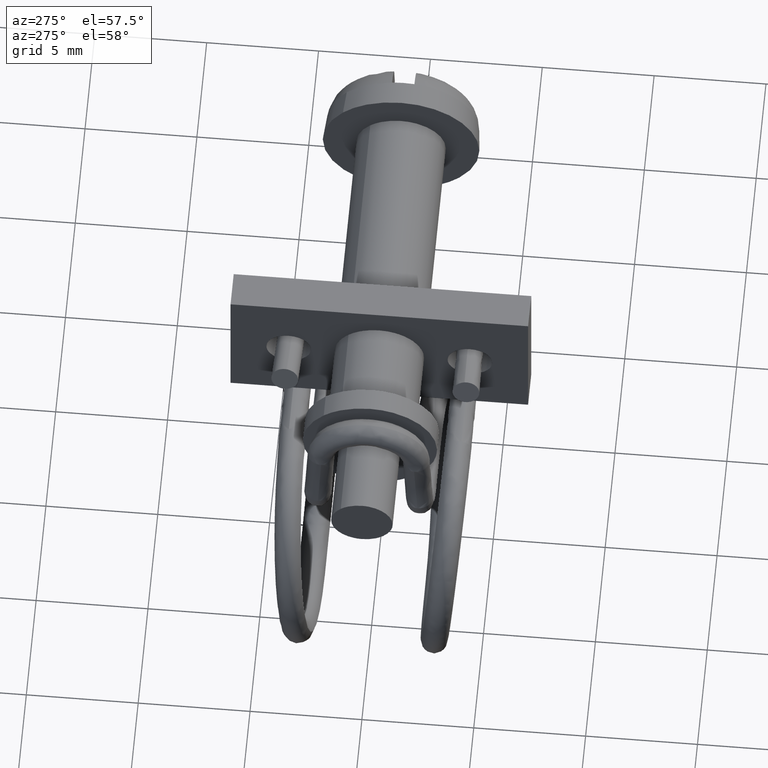
[diagram: clean part render]
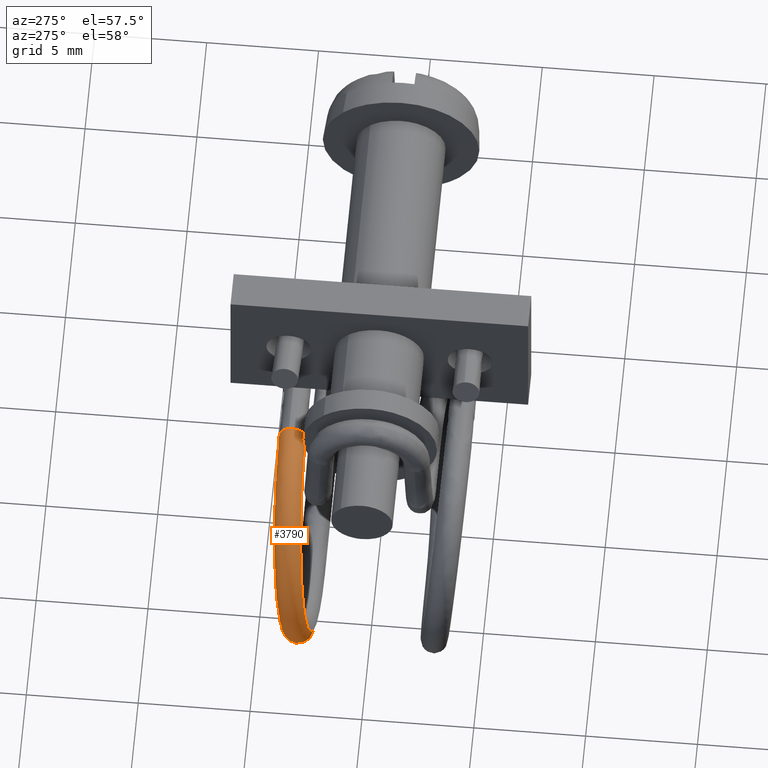
[diagram: same view with one face highlighted and labeled with its STEP entity id]
A machine part, auxiliary view. The second image highlights one B-rep face of the part: STEP entity #3790.
In plain terms, the highlighted face is a freeform B-spline surface patch.
Its self-contained STEP definition (entity closure, byte-faithful):
#3320=CARTESIAN_POINT('',(-13.150000000000000,2.250682573331275,-15.278611572537450));
#3321=VERTEX_POINT('',#3320);
#3337=CARTESIAN_POINT('',(-13.150000000000000,3.449317426677660,-15.221388427477610));
#3338=VERTEX_POINT('',#3337);
#3450=CARTESIAN_POINT('',(-13.150000000000000,3.449317426677660,-15.221388427477610));
#3451=CARTESIAN_POINT('',(-13.150000000000000,3.464298411022270,-15.535190298279799));
#3452=CARTESIAN_POINT('',(-13.150000000000000,3.192413443335191,-15.834336442338801));
#3453=CARTESIAN_POINT('',(-13.150000000000000,2.564809701733581,-15.864298411028001));
#3454=CARTESIAN_POINT('',(-13.150000000000000,2.265663557675883,-15.592413443339650));
#3455=CARTESIAN_POINT('',(-13.150000000000000,2.250682573331275,-15.278611572537450));
#3456=B_SPLINE_CURVE_WITH_KNOTS('',3,(#3450,#3451,#3452,#3453,#3454,#3455),.UNSPECIFIED.,.F.,.U.,(4,2,4),(0.0,0.250000000000000,0.500000000000000),.UNSPECIFIED.);
#3457=EDGE_CURVE('',#3338,#3321,#3456,.T.);
#3586=CARTESIAN_POINT('',(-13.150000000000000,3.108097682923939,-3.931654554348345));
#3587=VERTEX_POINT('',#3586);
#3588=CARTESIAN_POINT('',(-13.150000000000000,3.108097682923939,-3.931654554348345));
#3589=CARTESIAN_POINT('',(-14.640227213124470,3.108097682923939,-3.931654554348345));
#3590=CARTESIAN_POINT('',(-16.112908063799701,3.061836032400463,-4.543877215618263));
#3591=CARTESIAN_POINT('',(-18.212977931657480,2.903071108961404,-6.644958409650029));
#3592=CARTESIAN_POINT('',(-18.823839354673549,2.791546208937348,-8.120869240774837));
#3593=CARTESIAN_POINT('',(-18.823536557400981,2.567146626129018,-11.090553810745970));
#3594=CARTESIAN_POINT('',(-18.212388786537620,2.455640336114955,-12.566218358617540));
#3595=CARTESIAN_POINT('',(-16.112270238921450,2.296920290530629,-14.666705643019281));
#3596=CARTESIAN_POINT('',(-14.639837804677249,2.250682573315323,-15.278611572537450));
#3597=CARTESIAN_POINT('',(-13.150000000000000,2.250682573315323,-15.278611572537450));
#3598=B_SPLINE_CURVE_WITH_KNOTS('',3,(#3588,#3589,#3590,#3591,#3592,#3593,#3594,#3595,#3596,#3597),.UNSPECIFIED.,.F.,.U.,(4,2,2,2,4),(0.106285421806451,0.144494037259015,0.182702652711579,0.220911268164144,0.259119883616708),.UNSPECIFIED.);
#3599=EDGE_CURVE('',#3587,#3321,#3598,.T.);
#3602=CARTESIAN_POINT('',(-13.150000000000000,4.284523380528468,-4.168345445636729));
#3603=VERTEX_POINT('',#3602);
#3604=CARTESIAN_POINT('',(-13.150000000000000,4.284523380528468,-4.168345445636729));
#3605=CARTESIAN_POINT('',(-14.601395473290831,4.284523380528468,-4.168345445636729));
#3606=CARTESIAN_POINT('',(-16.035760743332720,4.239468188362447,-4.764601941892142));
#3607=CARTESIAN_POINT('',(-18.081357605838750,4.084821414825846,-6.811183898133701));
#3608=CARTESIAN_POINT('',(-18.676459473801849,3.976179518512834,-8.248941308793379));
#3609=CARTESIAN_POINT('',(-18.676164497714179,3.757576125579505,-11.141919605857391));
#3610=CARTESIAN_POINT('',(-18.080783707251001,3.648952363423784,-12.579437030654930));
#3611=CARTESIAN_POINT('',(-16.035139497904680,3.494349308978703,-14.625440412242391));
#3612=CARTESIAN_POINT('',(-14.601016221487679,3.449317426667025,-15.221388427477610));
#3613=CARTESIAN_POINT('',(-13.150000000000000,3.449317426667025,-15.221388427477610));
#3614=B_SPLINE_CURVE_WITH_KNOTS('',3,(#3604,#3605,#3606,#3607,#3608,#3609,#3610,#3611,#3612,#3613),.UNSPECIFIED.,.F.,.U.,(4,2,2,2,4),(0.106285421806451,0.144494037259015,0.182702652711579,0.220911268164144,0.259119883616708),.UNSPECIFIED.);
#3615=EDGE_CURVE('',#3603,#3338,#3614,.T.);
#3642=CARTESIAN_POINT('',(-12.976422789133490,4.279799591012056,-4.187076102854281));
#3643=CARTESIAN_POINT('',(-12.971401568699070,4.319053650277308,-4.030454799364049));
#3644=CARTESIAN_POINT('',(-12.961149686177221,4.252428518973728,-3.693523444431918));
#3645=CARTESIAN_POINT('',(-12.955297098569240,3.973753837361508,-3.490308991538161));
#3646=CARTESIAN_POINT('',(-12.954053218022381,3.656923439314455,-3.426419498743458));
#3647=CARTESIAN_POINT('',(-12.957532477170581,3.321219677848547,-3.505843785658303));
#3648=CARTESIAN_POINT('',(-12.966699604155730,3.129466360220135,-3.791448958468699));
#3649=CARTESIAN_POINT('',(-12.971765545139990,3.105124599765797,-3.950626780778587));
#3650=CARTESIAN_POINT('',(-13.034281855314280,4.280107212601552,-4.186797024039488));
#3651=CARTESIAN_POINT('',(-13.030934375777370,4.318795999395942,-4.030718642233656));
#3652=CARTESIAN_POINT('',(-13.024099789459621,4.253214701552293,-3.693402501548455));
#3653=CARTESIAN_POINT('',(-13.020198065393821,3.973619011183765,-3.490743903169666));
#3654=CARTESIAN_POINT('',(-13.019368812275211,3.656935965478898,-3.426829803503119));
#3655=CARTESIAN_POINT('',(-13.021688319267909,3.320357264655494,-3.505036924410335));
#3656=CARTESIAN_POINT('',(-13.027799739476910,3.129622118365851,-3.791958913308476));
#3657=CARTESIAN_POINT('',(-13.031177034245260,3.105066243423519,-3.950382517053189));
#3658=CARTESIAN_POINT('',(-13.092140918900469,4.280256741450317,-4.186729097015593));
#3659=CARTESIAN_POINT('',(-13.090467176885801,4.317101664582097,-4.032414987678601));
#3660=CARTESIAN_POINT('',(-13.087049881613201,4.257898415846957,-3.689787464870360));
#3661=CARTESIAN_POINT('',(-13.085099027863169,3.970665773685925,-3.492216453925907));
#3662=CARTESIAN_POINT('',(-13.084684410892351,3.658937053509455,-3.429057979222512));
#3663=CARTESIAN_POINT('',(-13.085844172945450,3.317941250157805,-3.501315573335996));
#3664=CARTESIAN_POINT('',(-13.088899880552381,3.129973509817724,-3.793365028654704));
#3665=CARTESIAN_POINT('',(-13.090588525853329,3.105001152655373,-3.950345641056582));
#3666=CARTESIAN_POINT('',(-13.873238599302960,4.280047206393133,-4.187043902651647));
#3667=CARTESIAN_POINT('',(-13.894160407718630,4.322701708721959,-4.027067491510815));
#3668=CARTESIAN_POINT('',(-13.936876631870041,4.242374004307527,-3.699921855525006));
#3669=CARTESIAN_POINT('',(-13.961262207684049,3.974145557072819,-3.493671534735501));
#3670=CARTESIAN_POINT('',(-13.966444808349239,3.655921940720155,-3.429967037147822));
#3671=CARTESIAN_POINT('',(-13.951947682436881,3.329068842349581,-3.516324175522310));
#3672=CARTESIAN_POINT('',(-13.913751374572319,3.128220187237320,-3.787007189743088));
#3673=CARTESIAN_POINT('',(-13.892643343950690,3.104907235717862,-3.950551943221938));
#3674=CARTESIAN_POINT('',(-15.311232780070460,4.258073361420668,-4.483923023922867));
#3675=CARTESIAN_POINT('',(-15.373719683528311,4.293569707552706,-4.336300409163881));
#3676=CARTESIAN_POINT('',(-15.501299996631870,4.220165125582954,-4.018394261916545));
#3677=CARTESIAN_POINT('',(-15.574133646918879,3.946839178966337,-3.821425551102299));
#3678=CARTESIAN_POINT('',(-15.589613760472620,3.633557338090341,-3.760390491808018));
#3679=CARTESIAN_POINT('',(-15.546316136930020,3.302502793915599,-3.839992550608890));
#3680=CARTESIAN_POINT('',(-15.432234285236810,3.107660910006206,-4.105751290413507));
#3681=CARTESIAN_POINT('',(-15.369190295903129,3.081637252013573,-4.255360370775136));
#3682=CARTESIAN_POINT('',(-16.535662687524560,4.196964394909289,-5.291079385719208));
#3683=CARTESIAN_POINT('',(-16.633468611633479,4.232757496406761,-5.165018930655346));
#3684=CARTESIAN_POINT('',(-16.833159357253638,4.152031852704479,-4.897668252619329));
#3685=CARTESIAN_POINT('',(-16.947157830785059,3.879057285378661,-4.728084121135779));
#3686=CARTESIAN_POINT('',(-16.971385973455352,3.563866767494184,-4.672716439956420));
#3687=CARTESIAN_POINT('',(-16.903615051057152,3.236485652979881,-4.736799567132568));
#3688=CARTESIAN_POINT('',(-16.725054634808870,3.042476196325794,-4.955876070775583));
#3689=CARTESIAN_POINT('',(-16.626378784835929,3.019047606417061,-5.084107870490615));
#3690=CARTESIAN_POINT('',(-18.064685901678981,4.081427961467000,-6.820823501114010));
#3691=CARTESIAN_POINT('',(-18.206514513768099,4.113201609861385,-6.739072848729415));
#3692=CARTESIAN_POINT('',(-18.496087239885629,4.026147763904602,-6.560991241611336));
#3693=CARTESIAN_POINT('',(-18.661399131594440,3.749163628831763,-6.442739283382180));
#3694=CARTESIAN_POINT('',(-18.696534142857740,3.433785535589452,-6.398372063604886));
#3695=CARTESIAN_POINT('',(-18.598259797138901,3.108562627765342,-6.431905640555713));
#3696=CARTESIAN_POINT('',(-18.339325438315690,2.920841126162793,-6.571351204653895));
#3697=CARTESIAN_POINT('',(-18.196233187966332,2.900330449114907,-6.654690909248972));
#3698=CARTESIAN_POINT('',(-18.657790903397000,3.973127157972812,-8.253767006680873));
#3699=CARTESIAN_POINT('',(-18.816604089523139,4.002078135167148,-8.212907404511846));
#3700=CARTESIAN_POINT('',(-19.140851420639532,3.908593564339998,-8.118832571806877));
#3701=CARTESIAN_POINT('',(-19.325954078166180,3.628024216206540,-8.048419427653030));
#3702=CARTESIAN_POINT('',(-19.365292799421091,3.311574593819643,-8.014188962449502));
#3703=CARTESIAN_POINT('',(-19.255248718166030,2.988519386103347,-8.019313991002530));
#3704=CARTESIAN_POINT('',(-18.965313234596799,2.806412027466531,-8.083614583997035));
#3705=CARTESIAN_POINT('',(-18.805090339412089,2.789183821361665,-8.125773564300525));
#3706=CARTESIAN_POINT('',(-18.657496674739932,3.755309399342656,-11.136903045207930));
#3707=CARTESIAN_POINT('',(-18.816303514026689,3.777544164499910,-11.179805014631629));
#3708=CARTESIAN_POINT('',(-19.140535830118349,3.670869582511130,-11.256103726028320));
#3709=CARTESIAN_POINT('',(-19.325626201344491,3.383122020094209,-11.282674589106909));
#3710=CARTESIAN_POINT('',(-19.364959966754451,3.065456764969278,-11.268985415087110));
#3711=CARTESIAN_POINT('',(-19.254919125744991,2.747042086829293,-11.216287165651361));
#3712=CARTESIAN_POINT('',(-18.965001088518068,2.576487217943253,-11.128004225447460));
#3713=CARTESIAN_POINT('',(-18.804788780308971,2.565519112699877,-11.085560981200450));
#3714=CARTESIAN_POINT('',(-18.064114052926030,3.647047766196208,-12.569540902172941));
#3715=CARTESIAN_POINT('',(-18.205925319579119,3.666210478386987,-12.653949261255150));
#3716=CARTESIAN_POINT('',(-18.495463253414350,3.553163668246161,-12.814778831605450));
#3717=CARTESIAN_POINT('',(-18.660757060635000,3.261673318722235,-12.889431290177670));
#3718=CARTESIAN_POINT('',(-18.695889354894589,2.943101068161405,-12.885897712819050));
#3719=CARTESIAN_POINT('',(-18.597627600832539,2.626781935725921,-12.804505994771510));
#3720=CARTESIAN_POINT('',(-18.338722298631350,2.462073919276055,-12.640606208480779));
#3721=CARTESIAN_POINT('',(-18.195645884744948,2.454397170515085,-12.556331045294071));
#3722=CARTESIAN_POINT('',(-16.025369064457269,3.492965600450101,-14.608650022562591));
#3723=CARTESIAN_POINT('',(-16.108483241170578,3.507695330319068,-14.751704266790879));
#3724=CARTESIAN_POINT('',(-16.278177140410001,3.385600114262848,-15.032345302600691));
#3725=CARTESIAN_POINT('',(-16.375049921735339,3.088938083598545,-15.175399657226601));
#3726=CARTESIAN_POINT('',(-16.395637595952600,2.769291830546136,-15.186418214177600));
#3727=CARTESIAN_POINT('',(-16.338046458971160,2.456034112253719,-15.064387834055610));
#3728=CARTESIAN_POINT('',(-16.186310306877949,2.299404271368821,-14.793347936274730));
#3729=CARTESIAN_POINT('',(-16.102458347778452,2.296200647671116,-14.649891330565270));
#3730=CARTESIAN_POINT('',(-14.596099286699991,3.448091555270395,-15.202567465309940));
#3731=CARTESIAN_POINT('',(-14.637931274010230,3.461477941861750,-15.362925267204661));
#3732=CARTESIAN_POINT('',(-14.723340463830530,3.336698199929059,-15.678613858415391));
#3733=CARTESIAN_POINT('',(-14.772099831568120,3.038590332205741,-15.841723553671560));
#3734=CARTESIAN_POINT('',(-14.782463468988849,2.718629036544810,-15.856997696730581));
#3735=CARTESIAN_POINT('',(-14.753477786813789,2.406340600604034,-15.723027315699600));
#3736=CARTESIAN_POINT('',(-14.677104229168190,2.252058732757817,-15.420662646830280));
#3737=CARTESIAN_POINT('',(-14.634898518063940,2.250110044695493,-15.259759921060731));
#3738=CARTESIAN_POINT('',(-13.092156050437721,3.448073571031026,-15.202583153581619));
#3739=CARTESIAN_POINT('',(-13.090482757389021,3.461618047432105,-15.362748975788310));
#3740=CARTESIAN_POINT('',(-13.087066369736920,3.336958516225999,-15.678570803379770));
#3741=CARTESIAN_POINT('',(-13.085116002002680,3.038645186331215,-15.841675172386051));
#3742=CARTESIAN_POINT('',(-13.084701465878760,2.718578128481602,-15.856955269758661));
#3743=CARTESIAN_POINT('',(-13.085860900219091,2.406083623750666,-15.723011061390871));
#3744=CARTESIAN_POINT('',(-13.088915822521820,2.251904682192757,-15.420501110203629));
#3745=CARTESIAN_POINT('',(-13.090604037386870,2.250129514589454,-15.259773432884570));
#3746=CARTESIAN_POINT('',(-13.034312150623251,3.448070609624439,-15.202583790526930));
#3747=CARTESIAN_POINT('',(-13.030965536777559,3.461604608122572,-15.362766577961519));
#3748=CARTESIAN_POINT('',(-13.024132720958839,3.336938670869141,-15.678562746518530));
#3749=CARTESIAN_POINT('',(-13.020231996244069,3.038643009901049,-15.841671990440901));
#3750=CARTESIAN_POINT('',(-13.019402939368330,2.718580499217694,-15.856951817639290));
#3751=CARTESIAN_POINT('',(-13.021721818954530,2.406103157491111,-15.723000968164000));
#3752=CARTESIAN_POINT('',(-13.027831623152350,2.251920357790219,-15.420517198283751));
#3753=CARTESIAN_POINT('',(-13.031208025093330,2.250133169866732,-15.259773622070879));
#3754=CARTESIAN_POINT('',(-12.976468226309059,3.448072995109651,-15.202578544603970));
#3755=CARTESIAN_POINT('',(-12.971448312023091,3.461596879819912,-15.362777108048020));
#3756=CARTESIAN_POINT('',(-12.961199093773700,3.336932284093841,-15.678555576603820));
#3757=CARTESIAN_POINT('',(-12.955347998983511,3.038642795261361,-15.841669579877159));
#3758=CARTESIAN_POINT('',(-12.954104404537530,2.718580998587899,-15.856949365269360));
#3759=CARTESIAN_POINT('',(-12.957582716159930,2.406109333143687,-15.722993180704750));
#3760=CARTESIAN_POINT('',(-12.966747427911169,2.251929501867843,-15.420526874708340));
#3761=CARTESIAN_POINT('',(-12.971812037310610,2.250130728836464,-15.259768544938360));
#3762=B_SPLINE_SURFACE_WITH_KNOTS('',3,3,((#3642,#3650,#3658,#3666,#3674,#3682,#3690,#3698,#3706,#3714,#3722,#3730,#3738,#3746,#3754),(#3643,#3651,#3659,#3667,#3675,#3683,#3691,#3699,#3707,#3715,#3723,#3731,#3739,#3747,#3755),(#3644,#3652,#3660,#3668,#3676,#3684,#3692,#3700,#3708,#3716,#3724,#3732,#3740,#3748,#3756),(#3645,#3653,#3661,#3669,#3677,#3685,#3693,#3701,#3709,#3717,#3725,#3733,#3741,#3749,#3757),(#3646,#3654,#3662,#3670,#3678,#3686,#3694,#3702,#3710,#3718,#3726,#3734,#3742,#3750,#3758),(#3647,#3655,#3663,#3671,#3679,#3687,#3695,#3703,#3711,#3719,#3727,#3735,#3743,#3751,#3759),(#3648,#3656,#3664,#3672,#3680,#3688,#3696,#3704,#3712,#3720,#3728,#3736,#3744,#3752,#3760),(#3649,#3657,#3665,#3673,#3681,#3689,#3697,#3705,#3713,#3721,#3729,#3737,#3745,#3753,#3761)),.UNSPECIFIED.,.F.,.F.,.U.,(4,1,2,1,4),(4,2,1,2,2,2,2,4),(0.0,0.482734229527838,0.965468459055676,1.448202603658527,1.930936748261377),(0.0,0.193698825664974,2.614934146477052,5.036169467289129,9.878640108913258,14.721110750537459,19.563581392161591,19.757280217826551),.UNSPECIFIED.);
#3763=ORIENTED_EDGE('',*,*,#3599,.F.);
#3764=CARTESIAN_POINT('',(-13.150000000000000,3.860431608695970,-3.472921168018014));
#3765=VERTEX_POINT('',#3764);
#3766=CARTESIAN_POINT('',(-13.150000000000000,3.860431608695970,-3.472921168018014));
#3767=CARTESIAN_POINT('',(-13.150000000000000,3.845339913036934,-3.468583649401851));
#3768=CARTESIAN_POINT('',(-13.150000000000000,3.830071422107934,-3.464852057749446));
#3769=CARTESIAN_POINT('',(-13.150000000000000,3.660670691109587,-3.430774893201891));
#3770=CARTESIAN_POINT('',(-13.150000000000000,3.494868905396736,-3.463382817637384));
#3771=CARTESIAN_POINT('',(-13.150000000000000,3.233268956504290,-3.637359278968713));
#3772=CARTESIAN_POINT('',(-13.150000000000000,3.139081682048289,-3.777656497919284));
#3773=CARTESIAN_POINT('',(-13.150000000000000,3.108097682923939,-3.931654554348345));
#3774=B_SPLINE_CURVE_WITH_KNOTS('',3,(#3766,#3767,#3768,#3769,#3770,#3771,#3772,#3773),.UNSPECIFIED.,.F.,.U.,(4,2,2,4),(0.237495030334333,0.250000000000001,0.375000000000001,0.500000000000001),.UNSPECIFIED.);
#3775=EDGE_CURVE('',#3765,#3587,#3774,.T.);
#3776=ORIENTED_EDGE('',*,*,#3775,.F.);
#3777=CARTESIAN_POINT('',(-13.150000000000000,4.284523380528468,-4.168345445636729));
#3778=CARTESIAN_POINT('',(-13.150000000000000,4.315507589758877,-4.014346658255623));
#3779=CARTESIAN_POINT('',(-13.150000000000000,4.282908032933990,-3.848539802575447));
#3780=CARTESIAN_POINT('',(-13.150000000000000,4.117649593376159,-3.600015513743634));
#3781=CARTESIAN_POINT('',(-13.150000000000000,3.996194484392996,-3.511949976813269));
#3782=CARTESIAN_POINT('',(-13.150000000000000,3.860431608695970,-3.472921168018014));
#3783=B_SPLINE_CURVE_WITH_KNOTS('',3,(#3777,#3778,#3779,#3780,#3781,#3782),.UNSPECIFIED.,.F.,.U.,(4,2,4),(0.0,0.125000000000001,0.237495030334333),.UNSPECIFIED.);
#3784=EDGE_CURVE('',#3603,#3765,#3783,.T.);
#3785=ORIENTED_EDGE('',*,*,#3784,.F.);
#3786=ORIENTED_EDGE('',*,*,#3615,.T.);
#3787=ORIENTED_EDGE('',*,*,#3457,.T.);
#3788=EDGE_LOOP('',(#3763,#3776,#3785,#3786,#3787));
#3789=FACE_OUTER_BOUND('',#3788,.T.);
#3790=ADVANCED_FACE('',(#3789),#3762,.F.);